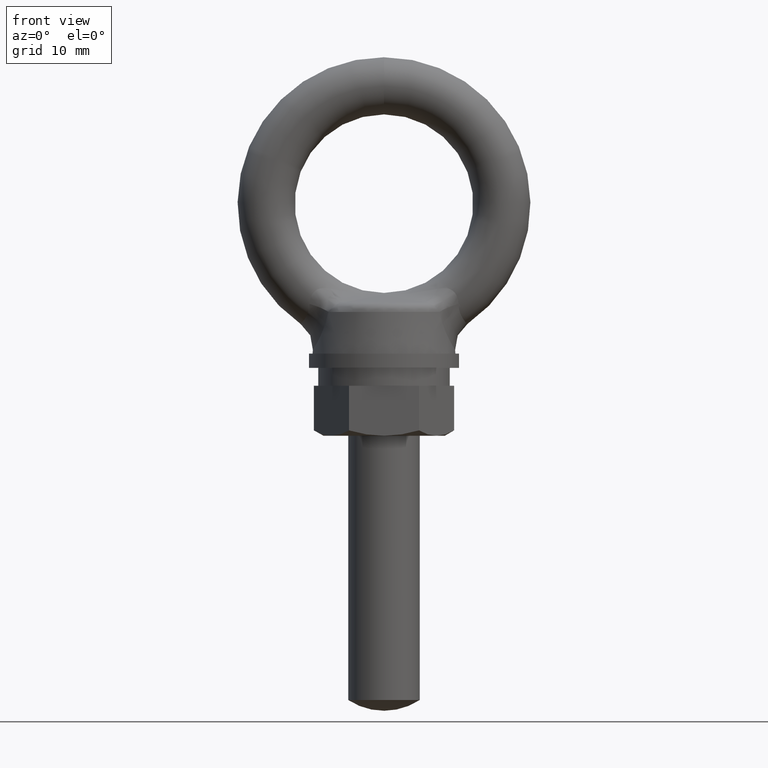
[diagram: clean part render]
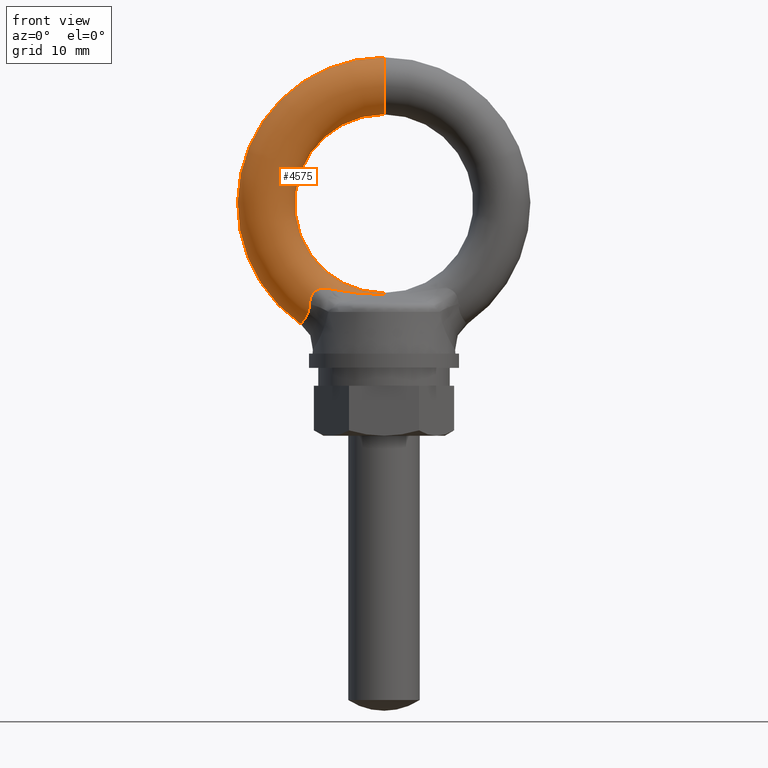
[diagram: same view with one face highlighted and labeled with its STEP entity id]
A machine part, front view. The second image highlights one B-rep face of the part: STEP entity #4575.
In plain terms, the highlighted toroidal blend (fillet) surface has major radius 16.5 mm and minor (blend) radius 4 mm.
Its self-contained STEP definition (entity closure, byte-faithful):
#1500 = B_SPLINE_CURVE_WITH_KNOTS ( 'NONE', 3,
 ( #1512, #1511, #1510, #1509, #1508, #1507, #1506, #1505, #1504, #1503, #1869, #1914, #1913, #1912, #1979, #1978 ),
 .UNSPECIFIED., .F., .F.,
 ( 4, 2, 2, 2, 2, 2, 2, 4 ),
 ( 0.0000000000000000000, 0.0005506281654855556500, 0.001101256330971111300, 0.001651884496456667000, 0.002202512661942222600, 0.002753140827427778500, 0.003303768992913333900, 0.004405025323884445200 ),
 .UNSPECIFIED. ) ;
#1503 = CARTESIAN_POINT ( 'NONE',  ( -9.374443474979038600, -3.800879500088069700, -12.01751718833933000 ) ) ;
#1504 = CARTESIAN_POINT ( 'NONE',  ( -9.673667092116051700, -3.896741838874793600, -12.21311517874696200 ) ) ;
#1505 = CARTESIAN_POINT ( 'NONE',  ( -9.811294439948762000, -3.936136526383830600, -12.33845362442251100 ) ) ;
#1506 = CARTESIAN_POINT ( 'NONE',  ( -10.04427290204945500, -3.987707195086939800, -12.62728632119275400 ) ) ;
#1507 = CARTESIAN_POINT ( 'NONE',  ( -10.13794460739424100, -3.999920479011717300, -12.78624051028102900 ) ) ;
#1508 = CARTESIAN_POINT ( 'NONE',  ( -10.28783256958711200, -4.000078753457428200, -13.12816381761267900 ) ) ;
#1509 = CARTESIAN_POINT ( 'NONE',  ( -10.34179866062223000, -3.987777649902833200, -13.30735372179037200 ) ) ;
#1510 = CARTESIAN_POINT ( 'NONE',  ( -10.41281054562488800, -3.945210029772011400, -13.66506971429504000 ) ) ;
#1511 = CARTESIAN_POINT ( 'NONE',  ( -10.43069568632454000, -3.914880150612589200, -13.84590569122214800 ) ) ;
#1512 = CARTESIAN_POINT ( 'NONE',  ( -10.43268733045542100, -3.877413604260050200, -14.02865645472643900 ) ) ;
#1573 = DIRECTION ( 'NONE',  ( 0.0000000000000000000, 0.0000000000000000000, -1.000000000000000000 ) ) ;
#1574 = DIRECTION ( 'NONE',  ( 0.0000000000000000000, -1.000000000000000000, 0.0000000000000000000 ) ) ;
#1575 = CARTESIAN_POINT ( 'NONE',  ( 0.0000000000000000000, 4.898425415289509000E-016, 0.0000000000000000000 ) ) ;
#1576 = AXIS2_PLACEMENT_3D ( 'NONE', #1575, #1574, #1573 ) ;
#1577 = CIRCLE ( 'NONE', #1576, 12.50000000000000000 ) ;
#1869 = CARTESIAN_POINT ( 'NONE',  ( -9.211872592812234500, -3.744371187428965400, -11.94566456662975900 ) ) ;
#1870 = B_SPLINE_CURVE_WITH_KNOTS ( 'NONE', 3,
 ( #2113, #2112, #2111, #2110, #2028, #2027, #2026, #2025, #2024, #2023 ),
 .UNSPECIFIED., .F., .F.,
 ( 4, 2, 2, 2, 4 ),
 ( 0.0000000000000000000, 0.003908837961975734400, 0.005863256942963602000, 0.006840466433457535400, 0.007817675923951468800 ),
 .UNSPECIFIED. ) ;
#1912 = CARTESIAN_POINT ( 'NONE',  ( -8.170083114881110800, -3.383184701333604500, -11.80235314141596300 ) ) ;
#1913 = CARTESIAN_POINT ( 'NONE',  ( -8.695333484958268900, -3.562554375078111700, -11.82466802386124400 ) ) ;
#1914 = CARTESIAN_POINT ( 'NONE',  ( -8.871490684972322100, -3.624855766044185600, -11.84906135502019700 ) ) ;
#1978 = CARTESIAN_POINT ( 'NONE',  ( -7.467880627820269600, -3.177411983194720500, -11.92478774879418100 ) ) ;
#1979 = CARTESIAN_POINT ( 'NONE',  ( -7.819693470380860500, -3.272561937105513700, -11.85127553392729500 ) ) ;
#1987 = CIRCLE ( 'NONE', #2088, 4.000000000000000000 ) ;
#1988 = CARTESIAN_POINT ( 'NONE',  ( -10.43268733045542100, -3.877413604260050200, -14.02865645472643900 ) ) ;
#1991 = CARTESIAN_POINT ( 'NONE',  ( -11.66463721091491700, 3.008829515707573800E-011, -16.85782425871557100 ) ) ;
#1992 = CARTESIAN_POINT ( 'NONE',  ( 1.530757942277971400E-015, 0.0000000000000000000, 12.50000000000000000 ) ) ;
#2019 = CARTESIAN_POINT ( 'NONE',  ( 0.0000000000000000000, 4.898425415289509000E-016, -12.50000000000000000 ) ) ;
#2020 = DIRECTION ( 'NONE',  ( 0.0000000000000000000, 0.0000000000000000000, 1.000000000000000000 ) ) ;
#2021 = DIRECTION ( 'NONE',  ( -1.000000000000000000, 0.0000000000000000000, 0.0000000000000000000 ) ) ;
#2022 = CARTESIAN_POINT ( 'NONE',  ( 0.0000000000000000000, 0.0000000000000000000, -16.50000000000000000 ) ) ;
#2023 = CARTESIAN_POINT ( 'NONE',  ( 4.363692368459697900E-013, -1.068570525734878300, -12.64537199829468900 ) ) ;
#2024 = CARTESIAN_POINT ( 'NONE',  ( -0.3268158079321296600, -1.068570525734819700, -12.64537199829468500 ) ) ;
#2025 = CARTESIAN_POINT ( 'NONE',  ( -0.6489984404384996400, -1.134613044114472800, -12.65064654013974500 ) ) ;
#2026 = CARTESIAN_POINT ( 'NONE',  ( -1.281017108672214400, -1.295223943684879800, -12.65379115529197700 ) ) ;
#2027 = CARTESIAN_POINT ( 'NONE',  ( -1.593585985159964300, -1.389776511621657400, -12.65156922857541700 ) ) ;
#2028 = CARTESIAN_POINT ( 'NONE',  ( -2.528682672776903800, -1.676757055052371200, -12.62673140614984200 ) ) ;
#2043 = CARTESIAN_POINT ( 'NONE',  ( 0.0000000000000000000, 0.0000000000000000000, 0.0000000000000000000 ) ) ;
#2044 = AXIS2_PLACEMENT_3D ( 'NONE', #2043, #2071, #2070 ) ;
#2045 = CIRCLE ( 'NONE', #2044, 20.50000000000000000 ) ;
#2046 = CARTESIAN_POINT ( 'NONE',  ( -10.43268733045542100, -3.877413604260050200, -14.02865645472643900 ) ) ;
#2047 = CARTESIAN_POINT ( 'NONE',  ( -10.43512833073318700, -3.831493829418951300, -14.25263957377864600 ) ) ;
#2048 = CARTESIAN_POINT ( 'NONE',  ( -10.45538312434290900, -3.769642908169118700, -14.47282916352848800 ) ) ;
#2049 = CARTESIAN_POINT ( 'NONE',  ( -10.53093981354513400, -3.607674165859228800, -14.89345384680518900 ) ) ;
#2050 = CARTESIAN_POINT ( 'NONE',  ( -10.58501042417164200, -3.509605501248139500, -15.08919766247702500 ) ) ;
#2070 = DIRECTION ( 'NONE',  ( 0.0000000000000000000, 0.0000000000000000000, -1.000000000000000000 ) ) ;
#2071 = DIRECTION ( 'NONE',  ( 0.0000000000000000000, -1.000000000000000000, 0.0000000000000000000 ) ) ;
#2079 = CARTESIAN_POINT ( 'NONE',  ( -11.46204194443547800, -1.540353998308932700, -16.63119779803789200 ) ) ;
#2080 = CARTESIAN_POINT ( 'NONE',  ( -11.56084793798949800, -1.115133617313786500, -16.74481670295696700 ) ) ;
#2081 = CARTESIAN_POINT ( 'NONE',  ( -11.59988919696608900, -0.8931911194612828200, -16.78770033408828900 ) ) ;
#2082 = CARTESIAN_POINT ( 'NONE',  ( -11.65149651876757100, -0.4492757659482720700, -16.84388619699042200 ) ) ;
#2083 = CARTESIAN_POINT ( 'NONE',  ( -11.66463721091608900, -0.2255363563936593200, -16.85782425871682500 ) ) ;
#2084 = CARTESIAN_POINT ( 'NONE',  ( -11.66463721091491700, 3.008829515707573800E-011, -16.85782425871557100 ) ) ;
#2085 = DIRECTION ( 'NONE',  ( -1.224606353822377500E-016, 0.0000000000000000000, -1.000000000000000000 ) ) ;
#2086 = DIRECTION ( 'NONE',  ( 1.000000000000000000, 0.0000000000000000000, -1.224606353822377300E-016 ) ) ;
#2087 = CARTESIAN_POINT ( 'NONE',  ( 2.020600483806922500E-015, 0.0000000000000000000, 16.50000000000000000 ) ) ;
#2088 = AXIS2_PLACEMENT_3D ( 'NONE', #2087, #2086, #2085 ) ;
#2094 = B_SPLINE_CURVE_WITH_KNOTS ( 'NONE', 3,
 ( #2084, #2083, #2082, #2081, #2080, #2079, #2101, #2100, #2099, #2098, #2097, #2096, #2095, #2050, #2049, #2048, #2047, #2046 ),
 .UNSPECIFIED., .F., .F.,
 ( 4, 2, 2, 2, 2, 2, 2, 2, 4 ),
 ( 0.005399195201900471900, 0.006074032370226000900, 0.006748869538551530900, 0.007423706706877059900, 0.008098543875202588900, 0.008773381043528117100, 0.009448218211853643600, 0.01012305538017916800, 0.01079789254850469500 ),
 .UNSPECIFIED. ) ;
#2095 = CARTESIAN_POINT ( 'NONE',  ( -10.71571964162090400, -3.276602941390820900, -15.45308340366726100 ) ) ;
#2096 = CARTESIAN_POINT ( 'NONE',  ( -10.79303833821526500, -3.140168226058775800, -15.62211158787230600 ) ) ;
#2097 = CARTESIAN_POINT ( 'NONE',  ( -10.95096572944683700, -2.842645967707620300, -15.92032543530144300 ) ) ;
#2098 = CARTESIAN_POINT ( 'NONE',  ( -11.03226769461791600, -2.680448513313144200, -16.05194163891196600 ) ) ;
#2099 = CARTESIAN_POINT ( 'NONE',  ( -11.18991545514855800, -2.329235969174302300, -16.28588359391605100 ) ) ;
#2100 = CARTESIAN_POINT ( 'NONE',  ( -11.26664855299514800, -2.138757008878926900, -16.38849511922223500 ) ) ;
#2101 = CARTESIAN_POINT ( 'NONE',  ( -11.40229897704889000, -1.745036253139451900, -16.56054895166969800 ) ) ;
#2110 = CARTESIAN_POINT ( 'NONE',  ( -3.148069537101433100, -1.875772282719821800, -12.58639663881572800 ) ) ;
#2111 = CARTESIAN_POINT ( 'NONE',  ( -5.005277452596189400, -2.461418736802244200, -12.39784555554043900 ) ) ;
#2112 = CARTESIAN_POINT ( 'NONE',  ( -6.233543521943151000, -2.843577897208044500, -12.18270571985227900 ) ) ;
#2113 = CARTESIAN_POINT ( 'NONE',  ( -7.467880627820269600, -3.177411983194720500, -11.92478774879418100 ) ) ;
#2114 = AXIS2_PLACEMENT_3D ( 'NONE', #2022, #2021, #2020 ) ;
#2115 = CIRCLE ( 'NONE', #2114, 4.000000000000000000 ) ;
#3164 = CARTESIAN_POINT ( 'NONE',  ( 4.363692368459697900E-013, -1.068570525734878300, -12.64537199829468900 ) ) ;
#3165 = CARTESIAN_POINT ( 'NONE',  ( -7.467880627820269600, -3.177411983194720500, -11.92478774879418100 ) ) ;
#3166 = DIRECTION ( 'NONE',  ( 0.0000000000000000000, 0.0000000000000000000, -1.000000000000000000 ) ) ;
#3167 = DIRECTION ( 'NONE',  ( 0.0000000000000000000, -1.000000000000000000, 0.0000000000000000000 ) ) ;
#3168 = CARTESIAN_POINT ( 'NONE',  ( 0.0000000000000000000, 0.0000000000000000000, 0.0000000000000000000 ) ) ;
#3169 = AXIS2_PLACEMENT_3D ( 'NONE', #3168, #3167, #3166 ) ;
#3170 = CARTESIAN_POINT ( 'NONE',  ( 2.510443025335873400E-015, 0.0000000000000000000, 20.50000000000000000 ) ) ;
#3171 = TOROIDAL_SURFACE ( 'NONE', #3169, 16.50000000000000000, 4.000000000000000000 ) ;
#3175 = FACE_OUTER_BOUND ( 'NONE', #4576, .T. ) ;
#4437 = ORIENTED_EDGE ( 'NONE', *, *, #4438, .F. ) ;
#4438 = EDGE_CURVE ( 'NONE', #4473, #4470, #1577, .T. ) ;
#4450 = ORIENTED_EDGE ( 'NONE', *, *, #4451, .T. ) ;
#4451 = EDGE_CURVE ( 'NONE', #4480, #4578, #1500, .T. ) ;
#4467 = EDGE_CURVE ( 'NONE', #4578, #4580, #1870, .T. ) ;
#4468 = ORIENTED_EDGE ( 'NONE', *, *, #4469, .T. ) ;
#4469 = EDGE_CURVE ( 'NONE', #4580, #4470, #2115, .T. ) ;
#4470 = VERTEX_POINT ( 'NONE', #2019 ) ;
#4473 = VERTEX_POINT ( 'NONE', #1992 ) ;
#4474 = VERTEX_POINT ( 'NONE', #1991 ) ;
#4479 = EDGE_CURVE ( 'NONE', #4474, #4480, #2094, .T. ) ;
#4480 = VERTEX_POINT ( 'NONE', #1988 ) ;
#4481 = ORIENTED_EDGE ( 'NONE', *, *, #4482, .F. ) ;
#4482 = EDGE_CURVE ( 'NONE', #4577, #4473, #1987, .T. ) ;
#4483 = ORIENTED_EDGE ( 'NONE', *, *, #4484, .T. ) ;
#4484 = EDGE_CURVE ( 'NONE', #4577, #4474, #2045, .T. ) ;
#4520 = ORIENTED_EDGE ( 'NONE', *, *, #4479, .T. ) ;
#4575 = ADVANCED_FACE ( 'NONE', ( #3175 ), #3171, .T. ) ;
#4576 = EDGE_LOOP ( 'NONE', ( #4481, #4483, #4520, #4450, #4579, #4468, #4437 ) ) ;
#4577 = VERTEX_POINT ( 'NONE', #3170 ) ;
#4578 = VERTEX_POINT ( 'NONE', #3165 ) ;
#4579 = ORIENTED_EDGE ( 'NONE', *, *, #4467, .T. ) ;
#4580 = VERTEX_POINT ( 'NONE', #3164 ) ;